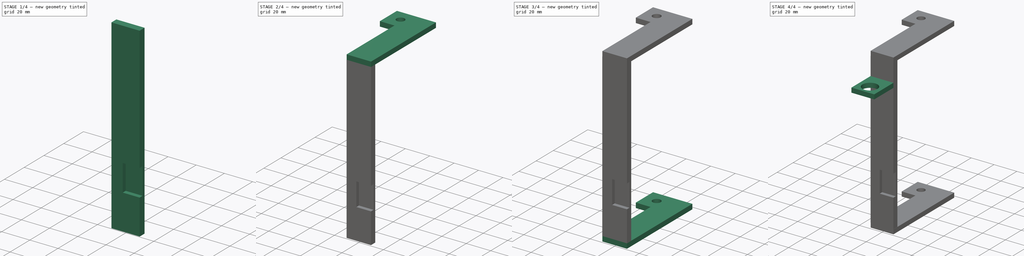
[diagram: build sequence overview — one tinted view per stage of 4, left to right]
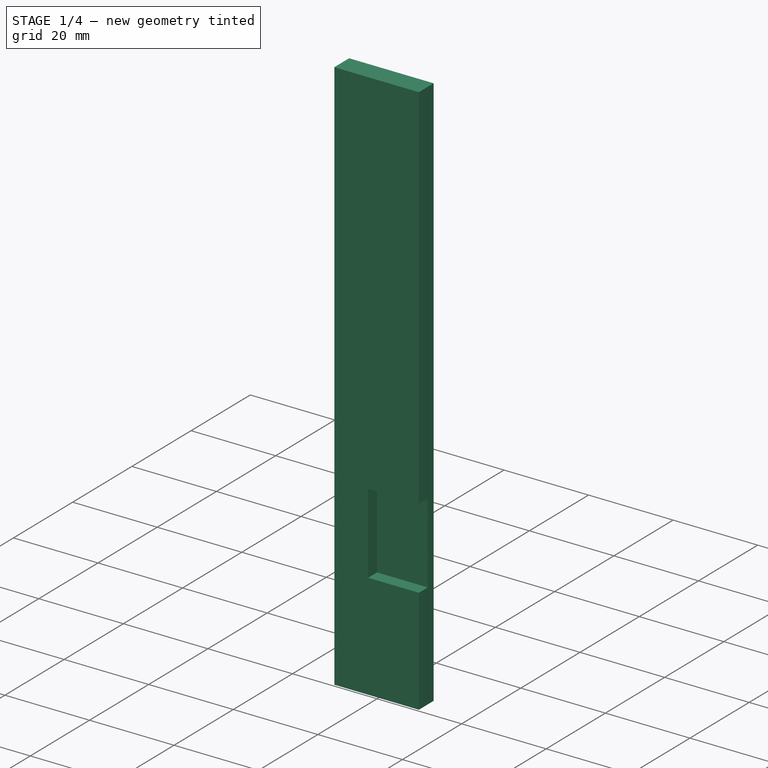
[diagram: stage 1 of 4 — iso view after this stage's code; geometry added in this stage tinted green]
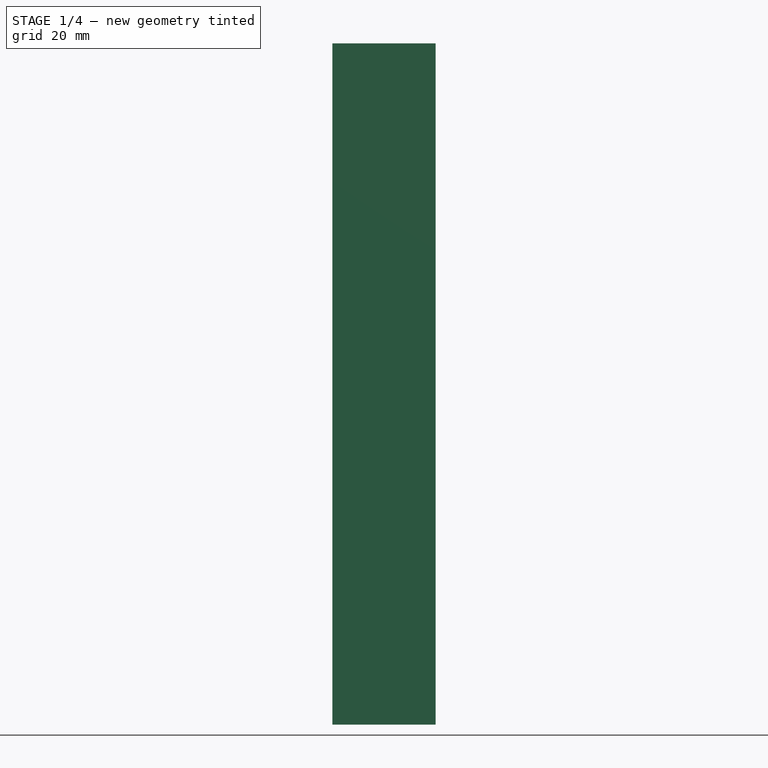
[diagram: stage 1 of 4 — front view after this stage's code; geometry added in this stage tinted green]
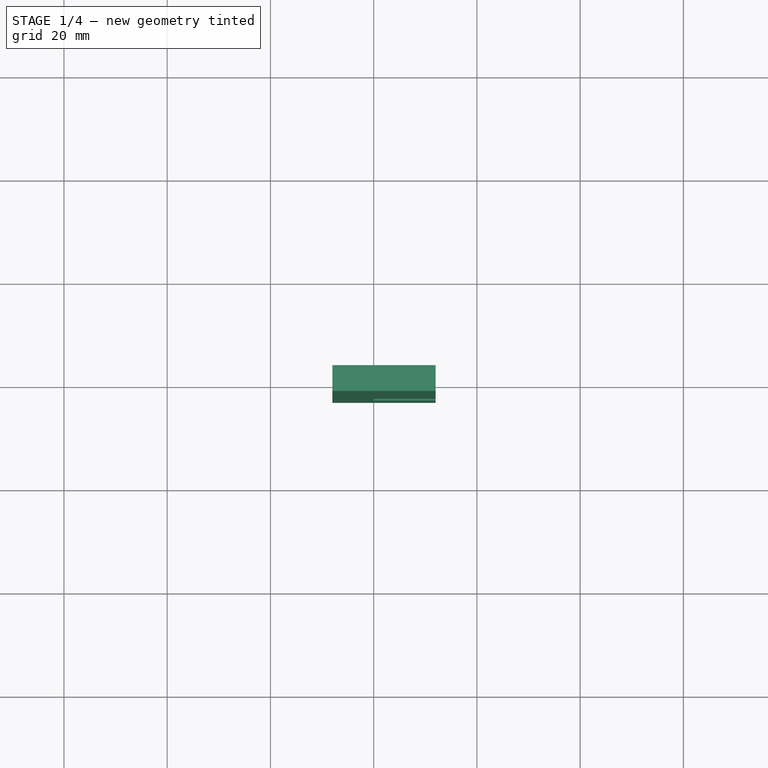
[diagram: stage 1 of 4 — top view after this stage's code; geometry added in this stage tinted green]
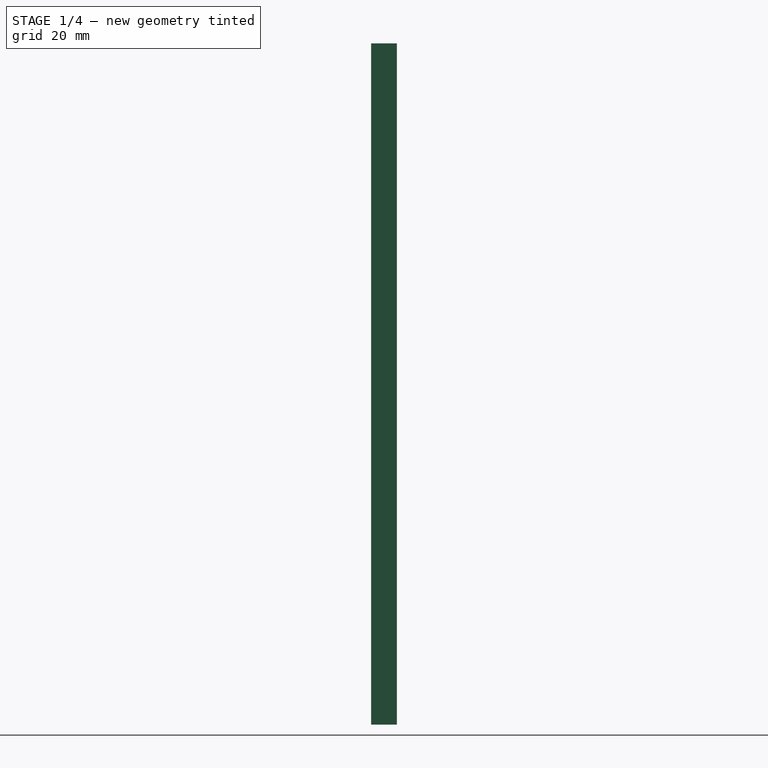
[diagram: stage 1 of 4 — right view after this stage's code; geometry added in this stage tinted green]
FCSTD DOCUMENT  (FreeCAD 0.17R13541 (Git))
Label: LimitSwitchHolder_z-axis_1of2
License: All rights reserved
LicenseURL: http://en.wikipedia.org/wiki/All_rights_reserved
objects: Sketcher::SketchObject×11, PartDesign::Pad×5, PartDesign::Body×5, PartDesign::Boolean×4, PartDesign::Hole×3, PartDesign::ShapeBinder×3
note: 39 computed .brp shape members not serialized (recipe doc carries the construction recipe); baked Part::Feature solids carry a one-line shape summary decoded from their .brp

FEATURE [PartDesign::ShapeBinder] CopyHole
FEATURE [Sketcher::SketchObject] Sketch003
  MapMode = 5
  Placement = pos=(0,0,0) rot=(1,0,0;3.14159rad)
  Support = -> [CopyHole]
  sketch-geometry (4):
    g0: LineSegment StartX=12 StartY=43 StartZ=0 EndX=32 EndY=43 EndZ=0
    g1: LineSegment StartX=32 StartY=43 StartZ=0 EndX=32 EndY=38 EndZ=0
    g2: LineSegment StartX=32 StartY=38 StartZ=0 EndX=12 EndY=38 EndZ=0
    g3: LineSegment StartX=12 StartY=38 StartZ=0 EndX=12 EndY=43 EndZ=0
  constraints (12):
    c: Coincident(g0,g1)
    c: Coincident(g1,g2)
    c: Coincident(g2,g3)
    c: Coincident(g3,g0)
    c: Horizontal(g0)
    c: Horizontal(g2)
    c: Vertical(g1)
    c: Vertical(g3)
    c: DistanceX(g-1,g2) = 12
    c: DistanceY(g-1,g2) = 38
    c: DistanceY(g1,g1) = 5
    c: DistanceX(g2,g2) = 20
FEATURE [PartDesign::Pad] Pad001
  Length = 132
  Length2 = 100
  Profile = -> Sketch003
  Type = 0
FEATURE [PartDesign::Body] Body003
  Group = -> [CopyPad001,Sketch006,Pad003,Sketch007,Sketch008,Sketch009,Hole002]
  Origin = -> Origin003
  Tip = -> Hole002
FEATURE [PartDesign::ShapeBinder] CopyPad001001
FEATURE [Sketcher::SketchObject] Sketch010
  MapMode = 5
  Placement = pos=(0,-43,0) rot=(1,0,0;1.5708rad)
  Support = -> [CopyPad001001]
  sketch-geometry (4):
    g0: LineSegment StartX=20 StartY=-88 StartZ=0 EndX=32 EndY=-88 EndZ=0
    g1: LineSegment StartX=32 StartY=-88 StartZ=0 EndX=32 EndY=-107 EndZ=0
    g2: LineSegment StartX=32 StartY=-107 StartZ=0 EndX=20 EndY=-107 EndZ=0
    g3: LineSegment StartX=20 StartY=-107 StartZ=0 EndX=20 EndY=-88 EndZ=0
  constraints (12):
    c: Coincident(g0,g1)
    c: Coincident(g1,g2)
    c: Coincident(g2,g3)
    c: Coincident(g3,g0)
    c: Horizontal(g0)
    c: Horizontal(g2)
    c: Vertical(g1)
    c: Vertical(g3)
    c: DistanceY(g0,g-1) = 88
    c: DistanceX(g0,g0) = 12
    c: DistanceY(g3,g3) = 19
    c: DistanceX(g-1,g0) = 20
FEATURE [PartDesign::Pad] Pad004
  Length = 3
  Length2 = 100
  Profile = -> Sketch010
  Reversed = true
  Type = 0
FEATURE [PartDesign::Body] Body004
  Group = -> [CopyPad001001,Sketch010,Pad004]
  Origin = -> Origin004
  Tip = -> Pad004
FEATURE [PartDesign::Boolean] Boolean
  BaseFeature = -> Pad001
  Group = -> [Body004]
  Type = 1
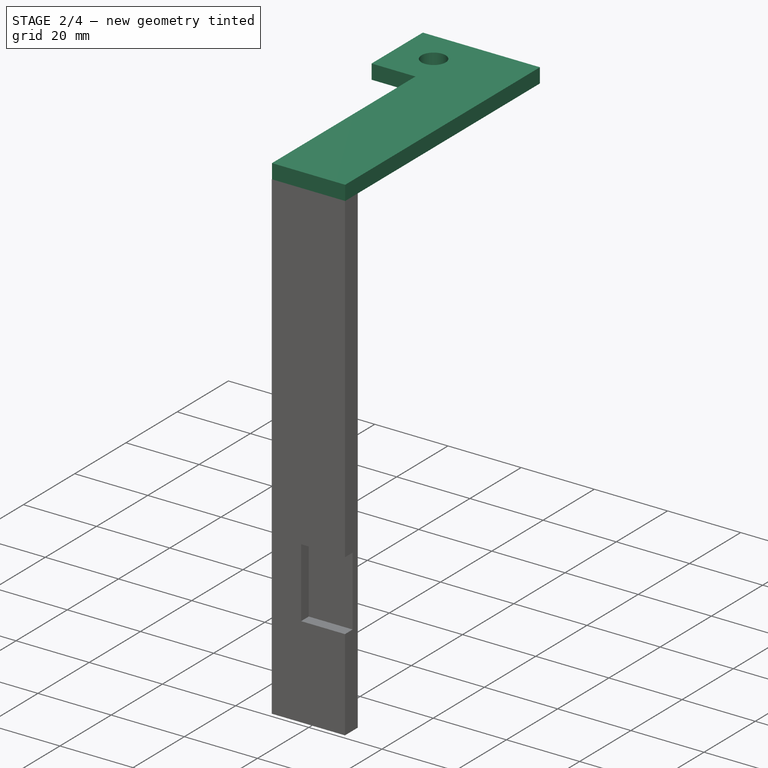
[diagram: stage 2 of 4 — iso view after this stage's code; geometry added in this stage tinted green]
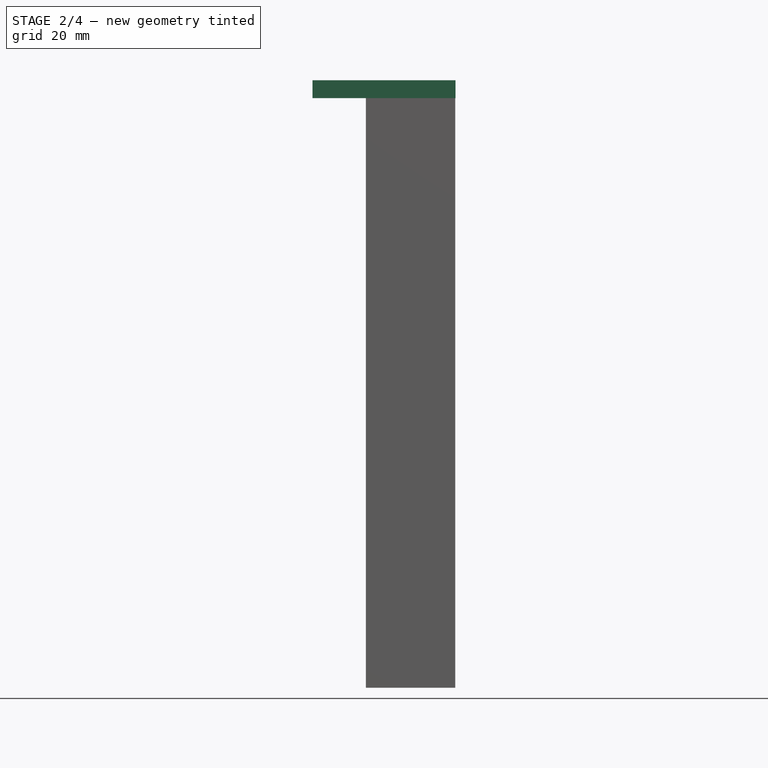
[diagram: stage 2 of 4 — front view after this stage's code; geometry added in this stage tinted green]
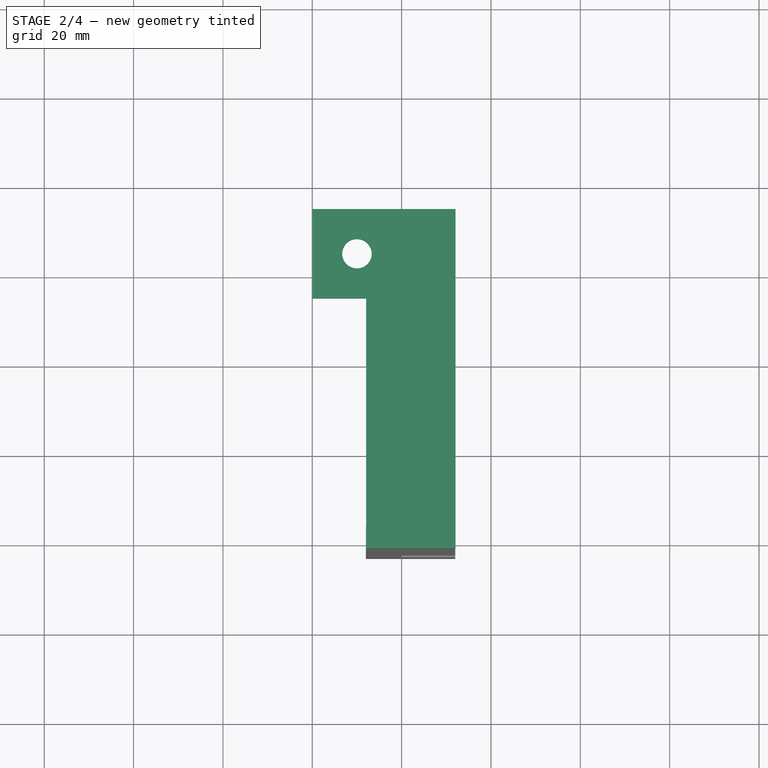
[diagram: stage 2 of 4 — top view after this stage's code; geometry added in this stage tinted green]
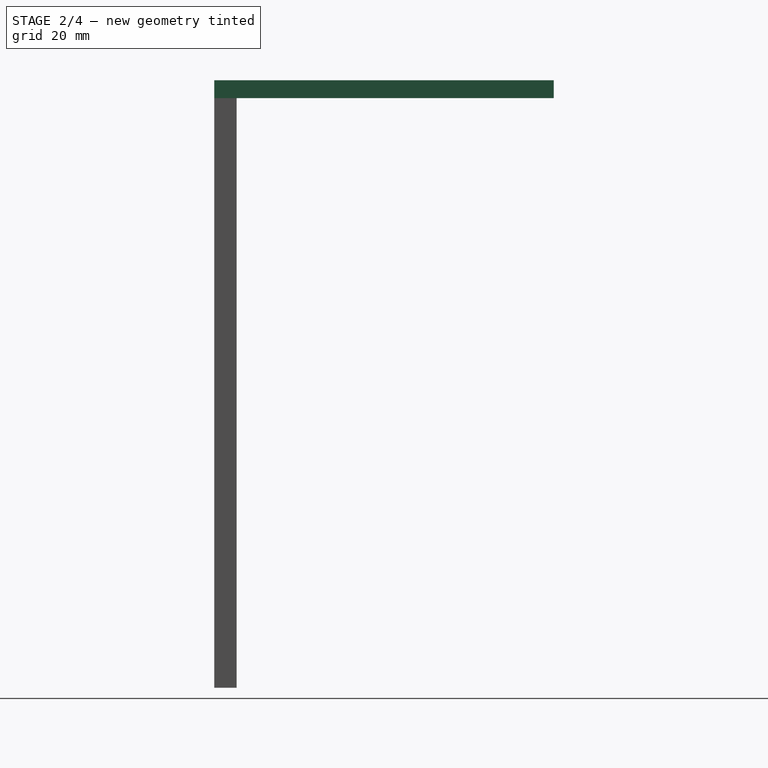
[diagram: stage 2 of 4 — right view after this stage's code; geometry added in this stage tinted green]
FEATURE [Sketcher::SketchObject] Sketch
  MapMode = 5
  Support = -> [XY_Plane]
  sketch-geometry (6):
    g0: LineSegment StartX=0.055073 StartY=33 StartZ=0 EndX=32.0551 EndY=33 EndZ=0
    g1: LineSegment StartX=32.0551 StartY=33 StartZ=0 EndX=32.0551 EndY=-43 EndZ=0
    g2: LineSegment StartX=32.0551 StartY=-43 StartZ=0 EndX=12.0551 EndY=-43 EndZ=0
    g3: LineSegment StartX=12.0551 StartY=-43 StartZ=0 EndX=12.0551 EndY=13 EndZ=0
    g4: LineSegment StartX=12.0551 StartY=13 StartZ=0 EndX=0.055073 EndY=13 EndZ=0
    g5: LineSegment StartX=0.055073 StartY=13 StartZ=0 EndX=0.055073 EndY=33 EndZ=0
  constraints (17):
    c: Horizontal(g0)
    c: Coincident(g0,g1)
    c: Vertical(g1)
    c: Coincident(g1,g2)
    c: Horizontal(g2)
    c: Coincident(g2,g3)
    c: Vertical(g3)
    c: Coincident(g3,g4)
    c: Horizontal(g4)
    c: Coincident(g4,g5)
    c: Coincident(g5,g0)
    c: Vertical(g5)
    c: DistanceY(g-1,g0) = 33
    c: DistanceY(g5,g5) = 20
    c: DistanceX(g0,g0) = 32
    c: DistanceY(g1,g1) = 76
    c: DistanceX(g4,g4) = 12
FEATURE [PartDesign::Pad] Pad
  Length = 4
  Length2 = 100
  Profile = -> Sketch
  Type = 0
FEATURE [Sketcher::SketchObject] Sketch001
  MapMode = 5
  Support = -> [XY_Plane001]
FEATURE [Sketcher::SketchObject] Sketch002
  MapMode = 5
  Placement = pos=(0,0,4) rot=(0,0,1;0rad)
  Support = -> [Pad]
  sketch-geometry (1):
    g0: Circle CenterX=10 CenterY=23 CenterZ=0 NormalX=0 NormalY=0 NormalZ=1 AngleXU=0 Radius=3.57598
  constraints (2):
    c: DistanceY(g-1,g0) = 23
    c: DistanceX(g-1,g0) = 10
FEATURE [PartDesign::Hole] Hole
  BaseFeature = -> Pad
  Depth = 25
  DepthType = 1
  Diameter = 6.6
  DrillPoint = 1
  DrillPointAngle = 118
  HoleCutCountersinkAngle = 90
  HoleCutDepth = 0
  HoleCutDiameter = 6
  HoleCutType = 0
  ModelActualThread = false
  Profile = -> Sketch002
  Tapered = false
  TaperedAngle = 90
  ThreadAngle = 0
  ThreadClass = 0
  ThreadCutOffInner = 0
  ThreadCutOffOuter = 0
  ThreadDirection = 0
  ThreadFit = 0
  ThreadPitch = 0
  ThreadSize = 7
  ThreadType = 1
  Threaded = false
FEATURE [PartDesign::Body] Body001
  Group = -> [Sketch001,CopyHole,Sketch003,Pad001,Boolean]
  Origin = -> Origin001
  Tip = -> Boolean
FEATURE [PartDesign::Boolean] Boolean001
  BaseFeature = -> Hole
  Group = -> [Body001]
  Type = 0
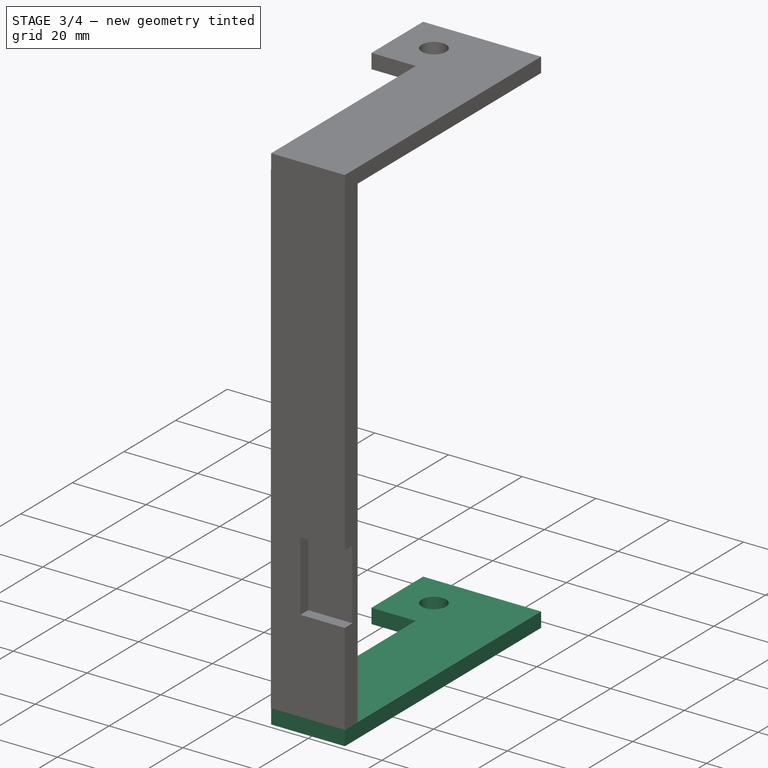
[diagram: stage 3 of 4 — iso view after this stage's code; geometry added in this stage tinted green]
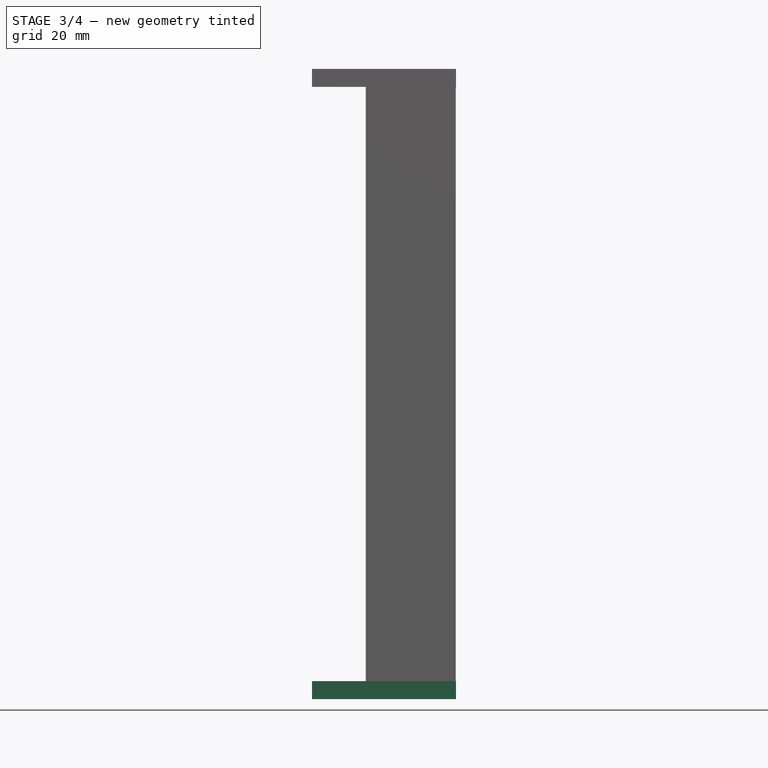
[diagram: stage 3 of 4 — front view after this stage's code; geometry added in this stage tinted green]
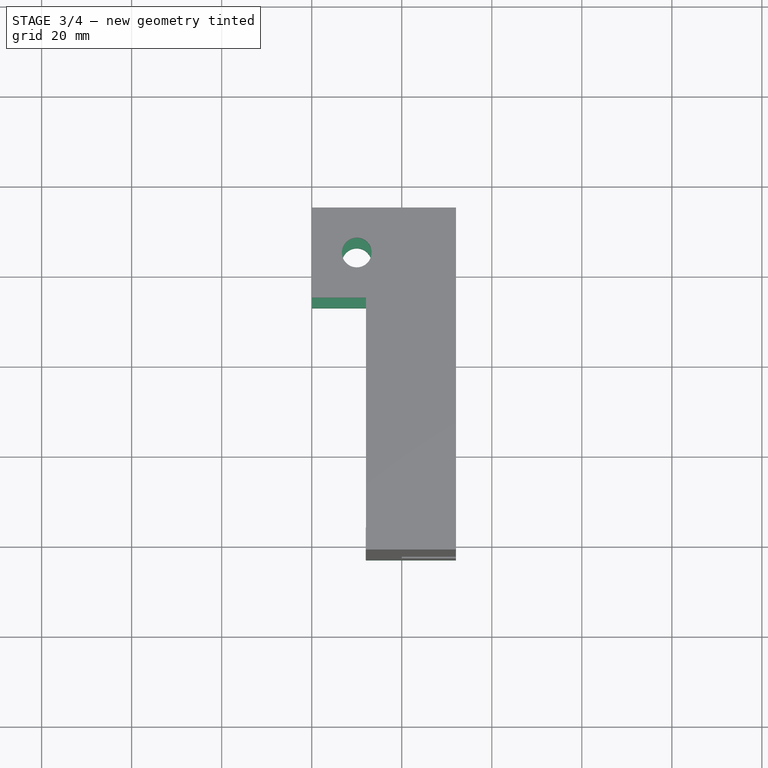
[diagram: stage 3 of 4 — top view after this stage's code; geometry added in this stage tinted green]
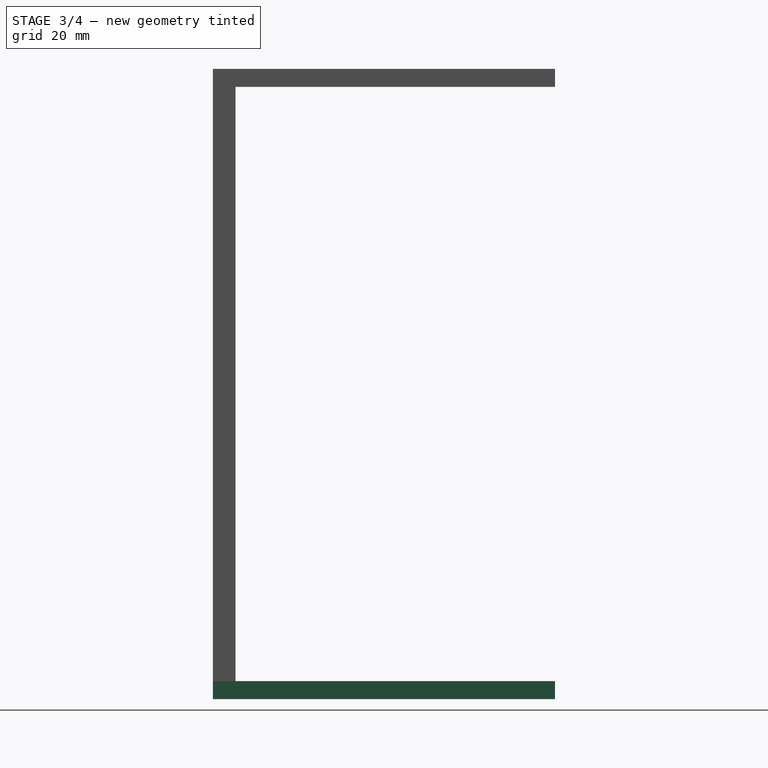
[diagram: stage 3 of 4 — right view after this stage's code; geometry added in this stage tinted green]
FEATURE [Sketcher::SketchObject] Sketch004
  MapMode = 5
  Support = -> [XY_Plane002]
  sketch-geometry (6):
    g0: LineSegment StartX=0.055073 StartY=33 StartZ=0 EndX=32.0551 EndY=33 EndZ=0
    g1: LineSegment StartX=32.0551 StartY=33 StartZ=0 EndX=32.0551 EndY=-43 EndZ=0
    g2: LineSegment StartX=32.0551 StartY=-43 StartZ=0 EndX=12.0551 EndY=-43 EndZ=0
    g3: LineSegment StartX=12.0551 StartY=-43 StartZ=0 EndX=12.0551 EndY=13 EndZ=0
    g4: LineSegment StartX=12.0551 StartY=13 StartZ=0 EndX=0.055073 EndY=13 EndZ=0
    g5: LineSegment StartX=0.055073 StartY=13 StartZ=0 EndX=0.055073 EndY=33 EndZ=0
  constraints (17):
    c: Horizontal(g0)
    c: Coincident(g0,g1)
    c: Vertical(g1)
    c: Coincident(g1,g2)
    c: Horizontal(g2)
    c: Coincident(g2,g3)
    c: Vertical(g3)
    c: Coincident(g3,g4)
    c: Horizontal(g4)
    c: Coincident(g4,g5)
    c: Coincident(g5,g0)
    c: Vertical(g5)
    c: DistanceY(g-1,g0) = 33
    c: DistanceY(g5,g5) = 20
    c: DistanceX(g0,g0) = 32
    c: DistanceY(g1,g1) = 76
    c: DistanceX(g4,g4) = 12
FEATURE [PartDesign::Pad] Pad002
  Length = 4
  Length2 = 100
  Profile = -> Sketch004
  Type = 0
FEATURE [Sketcher::SketchObject] Sketch005
  MapMode = 5
  Placement = pos=(0,0,4) rot=(0,0,1;0rad)
  Support = -> [Pad002]
  sketch-geometry (1):
    g0: Circle CenterX=10 CenterY=23 CenterZ=0 NormalX=0 NormalY=0 NormalZ=1 AngleXU=0 Radius=3.57598
  constraints (2):
    c: DistanceY(g-1,g0) = 23
    c: DistanceX(g-1,g0) = 10
FEATURE [PartDesign::Hole] Hole001
  BaseFeature = -> Pad002
  Depth = 25
  DepthType = 1
  Diameter = 6.6
  DrillPoint = 1
  DrillPointAngle = 118
  HoleCutCountersinkAngle = 90
  HoleCutDepth = 0
  HoleCutDiameter = 6
  HoleCutType = 0
  ModelActualThread = false
  Profile = -> Sketch005
  Tapered = false
  TaperedAngle = 90
  ThreadAngle = 0
  ThreadClass = 0
  ThreadCutOffInner = 0
  ThreadCutOffOuter = 0
  ThreadDirection = 0
  ThreadFit = 0
  ThreadPitch = 0
  ThreadSize = 7
  ThreadType = 1
  Threaded = false
FEATURE [PartDesign::Boolean] Boolean002
  BaseFeature = -> Boolean001
  Group = -> [Body002]
  Type = 0
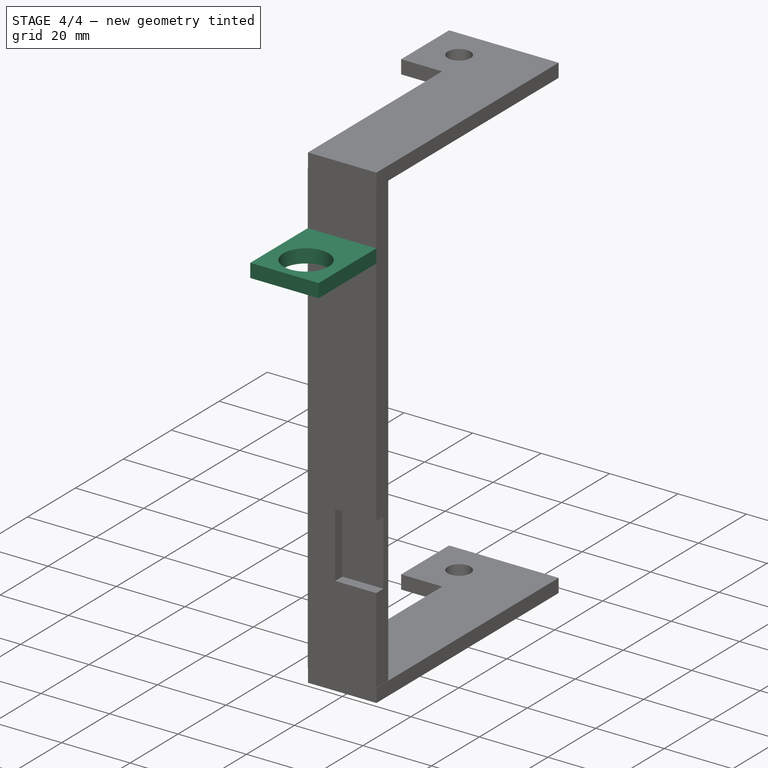
[diagram: stage 4 of 4 — iso view after this stage's code; geometry added in this stage tinted green]
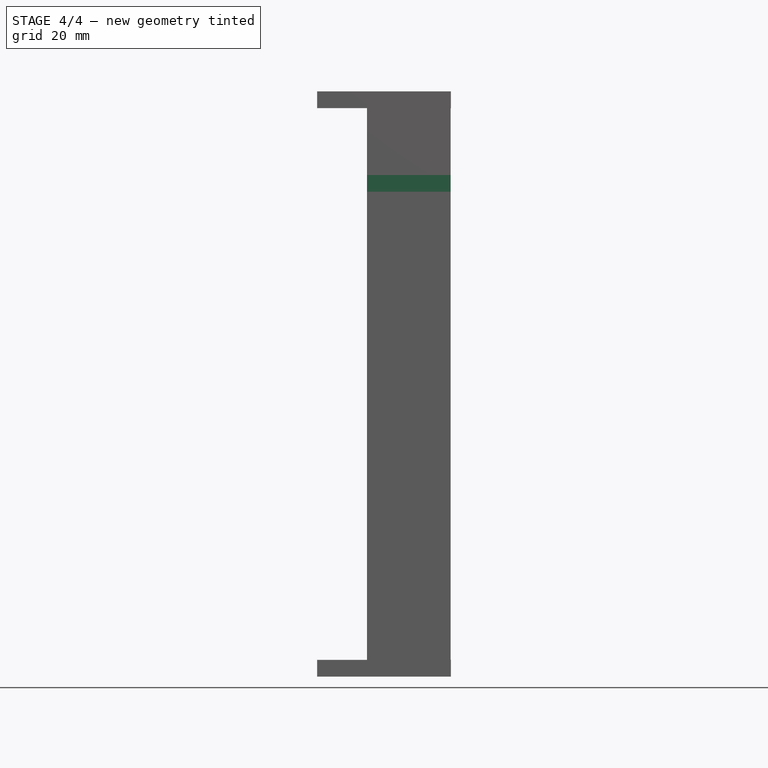
[diagram: stage 4 of 4 — front view after this stage's code; geometry added in this stage tinted green]
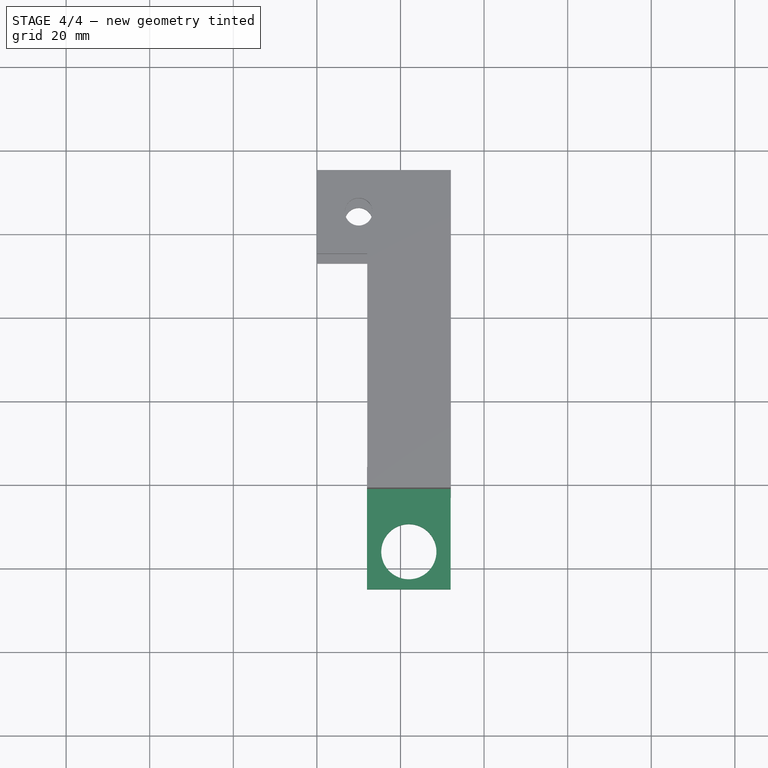
[diagram: stage 4 of 4 — top view after this stage's code; geometry added in this stage tinted green]
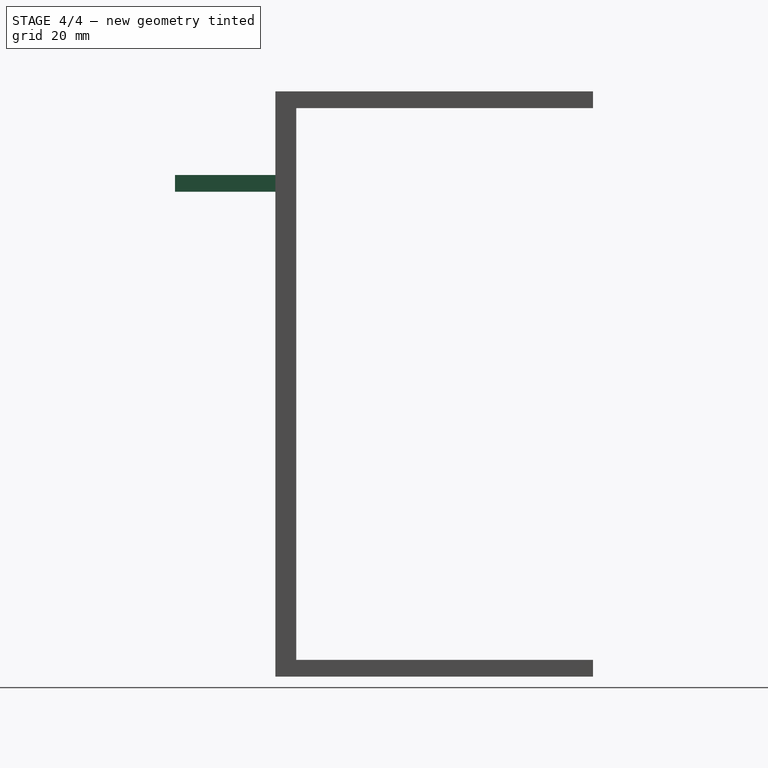
[diagram: stage 4 of 4 — right view after this stage's code; geometry added in this stage tinted green]
FEATURE [PartDesign::Body] Body002
  Group = -> [Sketch004,Pad002,Sketch005,Hole001]
  Origin = -> Origin002
  Placement = pos=(0,0,-136) rot=(0,0,1;0rad)
  Tip = -> Hole001
FEATURE [PartDesign::ShapeBinder] CopyPad001
FEATURE [Sketcher::SketchObject] Sketch006
  MapMode = 5
  Placement = pos=(0,-43,0) rot=(1,0,0;1.5708rad)
  Support = -> [CopyPad001]
  sketch-geometry (4):
    g0: LineSegment StartX=12 StartY=-16 StartZ=0 EndX=32 EndY=-16 EndZ=0
    g1: LineSegment StartX=32 StartY=-16 StartZ=0 EndX=32 EndY=-20 EndZ=0
    g2: LineSegment StartX=32 StartY=-20 StartZ=0 EndX=12 EndY=-20 EndZ=0
    g3: LineSegment StartX=12 StartY=-20 StartZ=0 EndX=12 EndY=-16 EndZ=0
  constraints (12):
    c: Coincident(g0,g1)
    c: Coincident(g1,g2)
    c: Coincident(g2,g3)
    c: Coincident(g3,g0)
    c: Horizontal(g0)
    c: Horizontal(g2)
    c: Vertical(g1)
    c: Vertical(g3)
    c: DistanceY(g0,g-1) = 16
    c: DistanceY(g3,g3) = 4
    c: DistanceX(g2,g2) = 20
    c: DistanceX(g-1,g0) = 12
FEATURE [PartDesign::Pad] Pad003
  Length = 24
  Length2 = 100
  Profile = -> Sketch006
  Type = 0
FEATURE [Sketcher::SketchObject] Sketch007
  MapMode = 5
  Placement = pos=(0,0,-20) rot=(1,0,0;3.14159rad)
  Support = -> [Pad003]
FEATURE [Sketcher::SketchObject] Sketch008
  MapMode = 5
  Placement = pos=(0,0,-20) rot=(1,0,0;3.14159rad)
  Support = -> [Pad003]
FEATURE [Sketcher::SketchObject] Sketch009
  MapMode = 5
  Placement = pos=(0,0,-16) rot=(0,0,1;0rad)
  Support = -> [Pad003]
  sketch-geometry (1):
    g0: Circle CenterX=22 CenterY=-58 CenterZ=0 NormalX=0 NormalY=0 NormalZ=1 AngleXU=0 Radius=6.6
  constraints (3):
    c: DistanceY(g0,g-1) = 58
    c: DistanceX(g-1,g0) = 22
    c: Radius(g0) = 6.6
FEATURE [PartDesign::Hole] Hole002
  BaseFeature = -> Pad003
  Depth = 25
  DepthType = 1
  Diameter = 13.2
  DrillPoint = 1
  DrillPointAngle = 118
  HoleCutCountersinkAngle = 90
  HoleCutDepth = 0
  HoleCutDiameter = 12
  HoleCutType = 0
  ModelActualThread = false
  Profile = -> Sketch009
  Tapered = false
  TaperedAngle = 90
  ThreadAngle = 0
  ThreadClass = 0
  ThreadCutOffInner = 0
  ThreadCutOffOuter = 0
  ThreadDirection = 0
  ThreadFit = 0
  ThreadPitch = 0
  ThreadSize = 10
  ThreadType = 1
  Threaded = false
FEATURE [PartDesign::Boolean] Boolean003
  BaseFeature = -> Boolean002
  Group = -> [Body003]
  Type = 0
FEATURE [PartDesign::Body] Body
  Group = -> [Sketch,Pad,Sketch002,Hole,Boolean001,Boolean002,Boolean003]
  Origin = -> Origin
  Tip = -> Boolean003
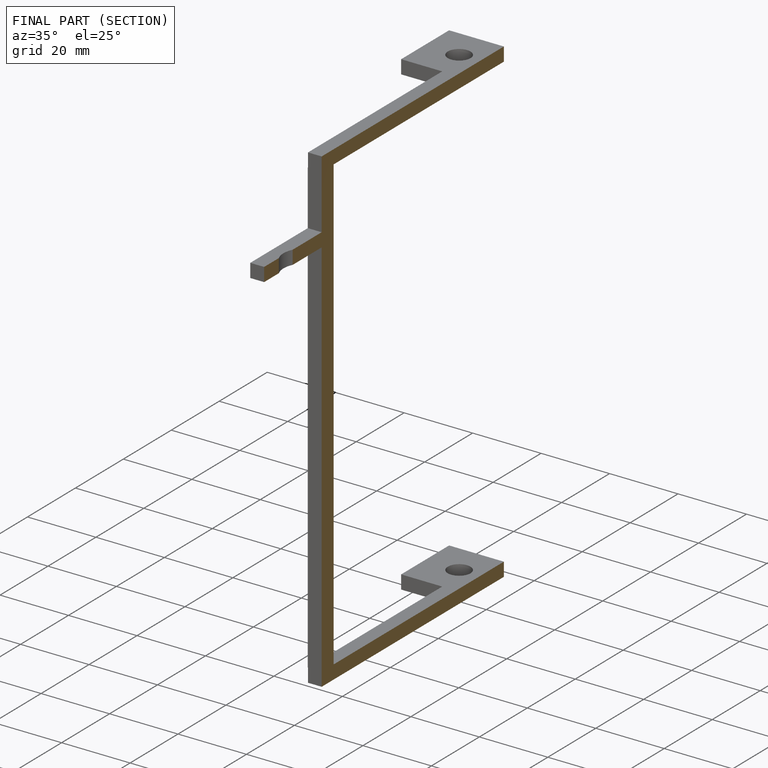
[diagram: finished part — half-section view (interior)]
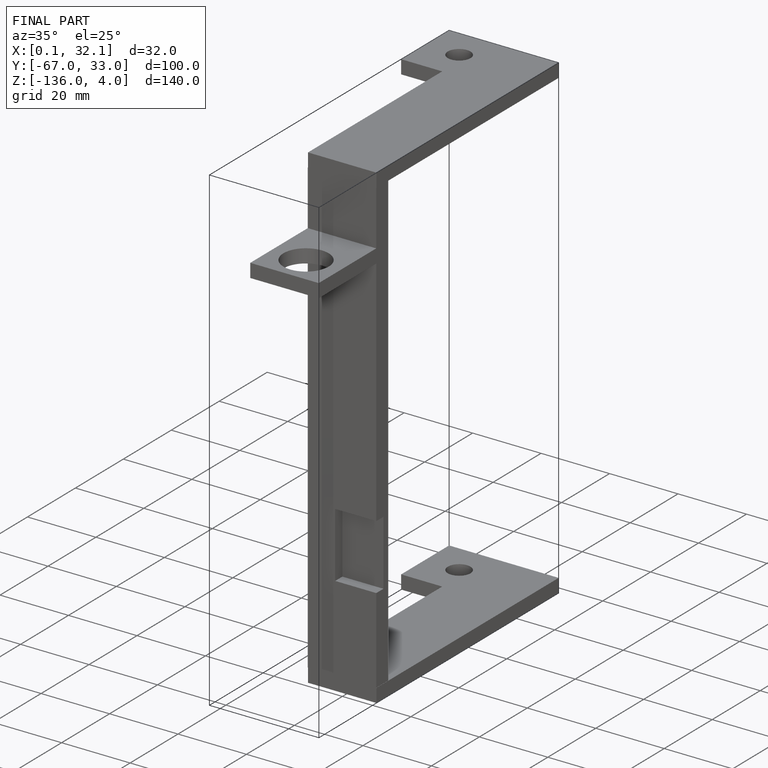
[diagram: finished part — iso view with bounding-box wireframe]
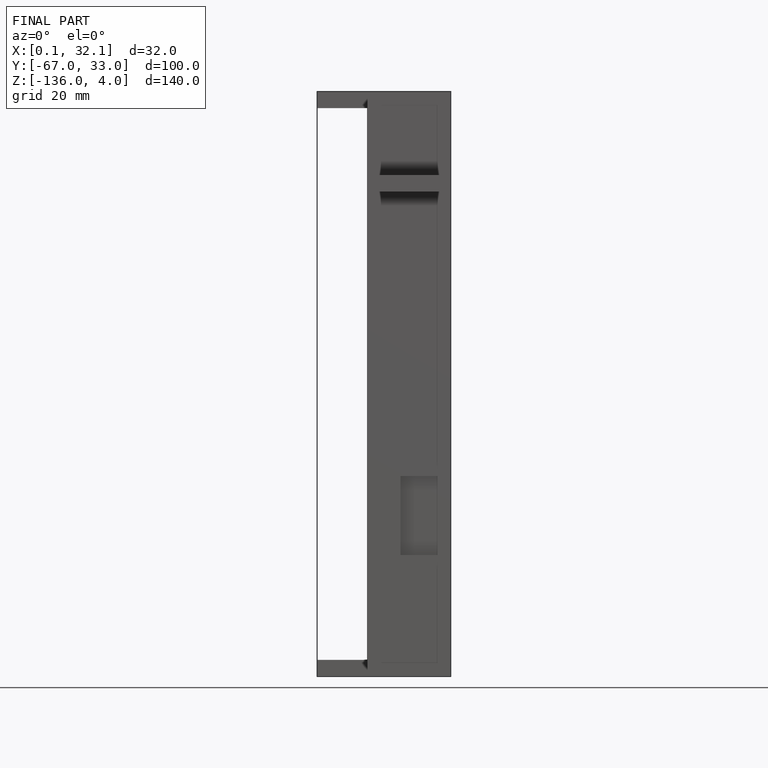
[diagram: finished part — front view with bounding-box wireframe]
